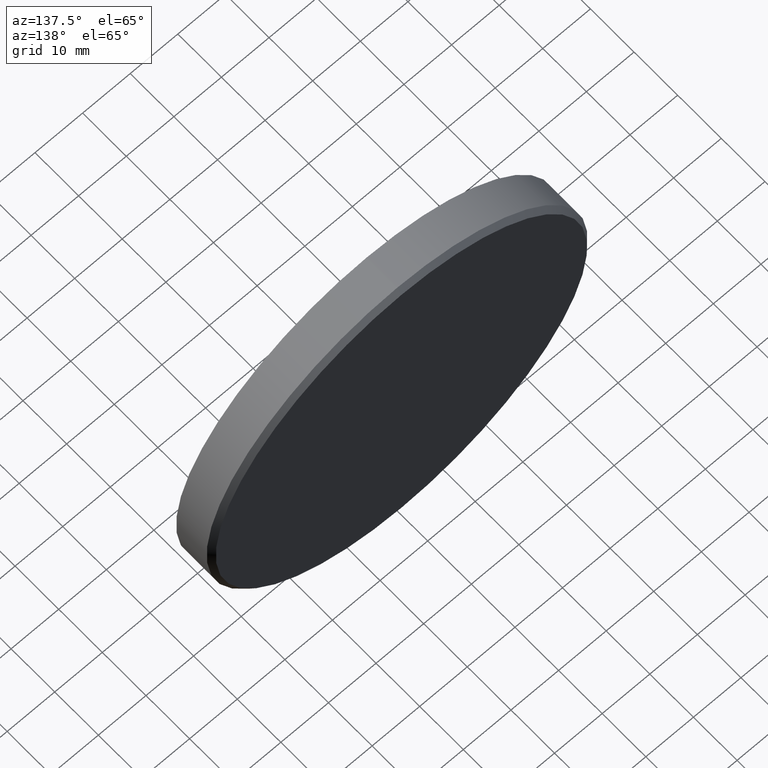
[diagram: clean part render]
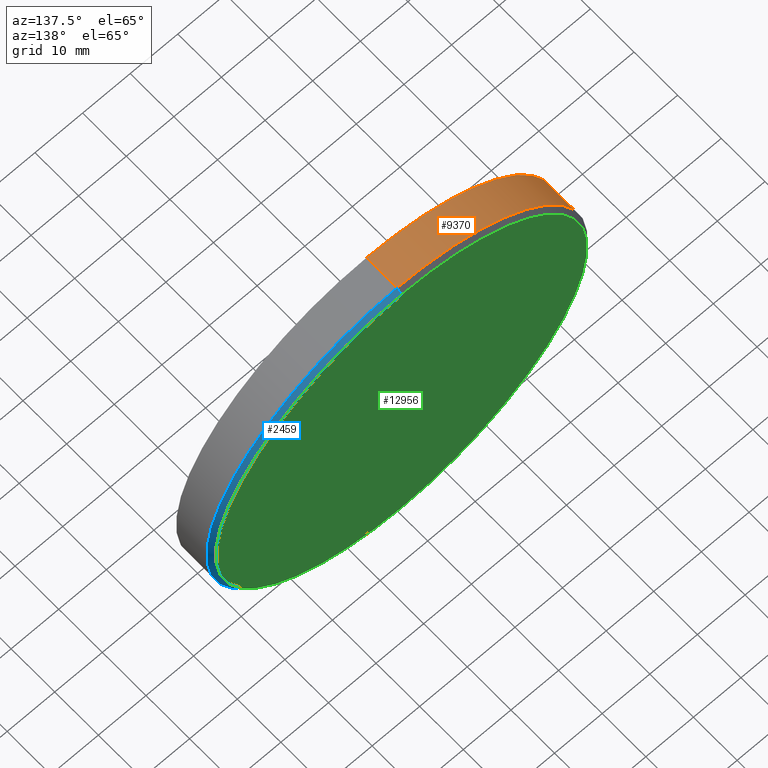
[diagram: same view with three faces highlighted in distinct colors, each labeled with its STEP entity id]
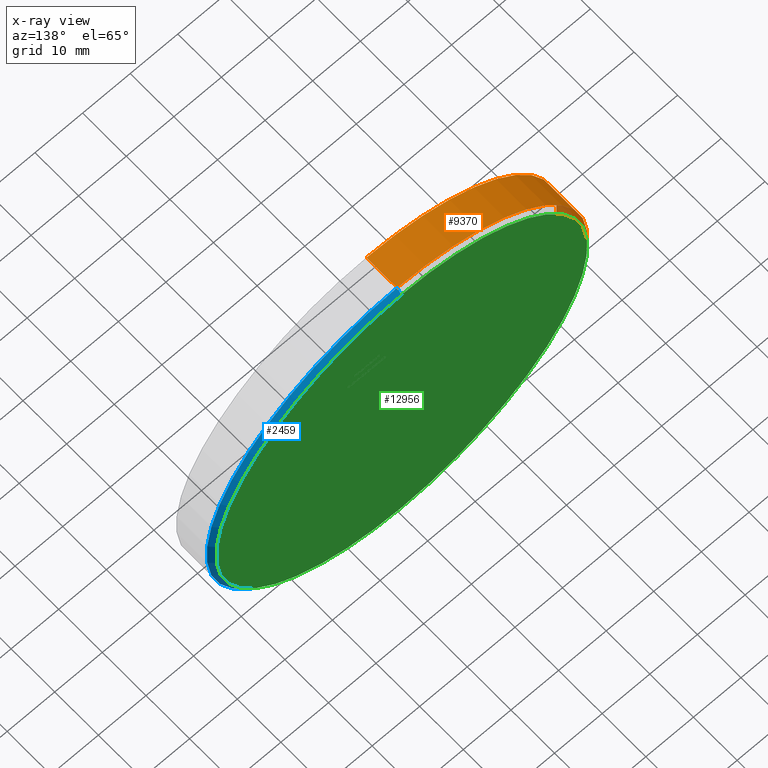
[diagram: x-ray of the same camera — body ghosted, the three highlighted faces saturated]
A machine part, auxiliary view with three faces highlighted in distinct colors.
The next image is the same camera in x-ray (body ghosted, the three faces saturated) — at least one of them is partly hidden behind the body in this view.
Their STEP definitions:

[orange] entity #9370 — the highlighted cylindrical surface (partial cylindrical patch) has radius 40 mm, axis along (-0, -1, -0).
#144 = CARTESIAN_POINT ( 'NONE',  ( 0.000000000000000000, 3.000000000000006217, -40.00000000000000000 ) ) ;
#514 = DIRECTION ( 'NONE',  ( 0.000000000000000000, 0.000000000000000000, 1.000000000000000000 ) ) ;
#927 = VERTEX_POINT ( 'NONE', #144 ) ;
#1267 = EDGE_CURVE ( 'NONE', #7699, #927, #7515, .T. ) ;
#1291 = VERTEX_POINT ( 'NONE', #5901 ) ;
#1484 = CIRCLE ( 'NONE', #15987, 40.00000000000000000 ) ;
#1567 = DIRECTION ( 'NONE',  ( -0.000000000000000000, -1.000000000000000000, -0.000000000000000000 ) ) ;
#1748 = CARTESIAN_POINT ( 'NONE',  ( 4.898587196589413026E-15, 4.000000000000000000, 40.00000000000000000 ) ) ;
#1823 = ORIENTED_EDGE ( 'NONE', *, *, #8007, .T. ) ;
#2233 = VECTOR ( 'NONE', #1567, 1000.000000000000000 ) ;
#2574 = DIRECTION ( 'NONE',  ( 0.000000000000000000, 0.000000000000000000, 1.000000000000000000 ) ) ;
#3330 = FACE_OUTER_BOUND ( 'NONE', #10522, .T. ) ;
#3564 = VECTOR ( 'NONE', #13700, 1000.000000000000000 ) ;
#3938 = ORIENTED_EDGE ( 'NONE', *, *, #1267, .T. ) ;
#5243 = DIRECTION ( 'NONE',  ( 0.000000000000000000, 1.000000000000000000, 0.000000000000000000 ) ) ;
#5835 = CARTESIAN_POINT ( 'NONE',  ( 0.000000000000000000, 3.000000000000006217, 0.000000000000000000 ) ) ;
#5901 = CARTESIAN_POINT ( 'NONE',  ( 0.000000000000000000, -4.000000000000000000, -40.00000000000000000 ) ) ;
#7515 = CIRCLE ( 'NONE', #8580, 40.00000000000000000 ) ;
#7562 = ORIENTED_EDGE ( 'NONE', *, *, #13845, .T. ) ;
#7699 = VERTEX_POINT ( 'NONE', #14073 ) ;
#8007 = EDGE_CURVE ( 'NONE', #927, #1291, #16359, .T. ) ;
#8580 = AXIS2_PLACEMENT_3D ( 'NONE', #5835, #15229, #514 ) ;
#8716 = CARTESIAN_POINT ( 'NONE',  ( 0.000000000000000000, 4.000000000000000000, 0.000000000000000000 ) ) ;
#8767 = CYLINDRICAL_SURFACE ( 'NONE', #11423, 40.00000000000000000 ) ;
#8944 = CARTESIAN_POINT ( 'NONE',  ( 0.000000000000000000, -4.000000000000000000, 0.000000000000000000 ) ) ;
#9370 = ADVANCED_FACE ( 'NONE', ( #3330 ), #8767, .T. ) ;
#9475 = CARTESIAN_POINT ( 'NONE',  ( 0.000000000000000000, 4.000000000000000000, -40.00000000000000000 ) ) ;
#10522 = EDGE_LOOP ( 'NONE', ( #17015, #3938, #1823, #7562 ) ) ;
#11423 = AXIS2_PLACEMENT_3D ( 'NONE', #8716, #15418, #14245 ) ;
#12123 = EDGE_CURVE ( 'NONE', #7699, #15593, #13536, .T. ) ;
#13536 = LINE ( 'NONE', #1748, #2233 ) ;
#13700 = DIRECTION ( 'NONE',  ( -0.000000000000000000, -1.000000000000000000, -0.000000000000000000 ) ) ;
#13845 = EDGE_CURVE ( 'NONE', #1291, #15593, #1484, .T. ) ;
#14073 = CARTESIAN_POINT ( 'NONE',  ( 4.898587196589413026E-15, 3.000000000000006217, 40.00000000000000000 ) ) ;
#14245 = DIRECTION ( 'NONE',  ( 0.000000000000000000, 0.000000000000000000, -1.000000000000000000 ) ) ;
#14975 = CARTESIAN_POINT ( 'NONE',  ( 4.898587196589413026E-15, -4.000000000000000000, 40.00000000000000000 ) ) ;
#15229 = DIRECTION ( 'NONE',  ( 0.000000000000000000, -1.000000000000000000, 0.000000000000000000 ) ) ;
#15418 = DIRECTION ( 'NONE',  ( -0.000000000000000000, -1.000000000000000000, -0.000000000000000000 ) ) ;
#15593 = VERTEX_POINT ( 'NONE', #14975 ) ;
#15987 = AXIS2_PLACEMENT_3D ( 'NONE', #8944, #5243, #2574 ) ;
#16359 = LINE ( 'NONE', #9475, #3564 ) ;
#17015 = ORIENTED_EDGE ( 'NONE', *, *, #12123, .F. ) ;

[blue] entity #2459 — the highlighted conical surface has half-angle 45 deg.
#144 = CARTESIAN_POINT ( 'NONE',  ( 0.000000000000000000, 3.000000000000006217, -40.00000000000000000 ) ) ;
#148 = DIRECTION ( 'NONE',  ( 0.000000000000000000, -1.000000000000000000, 0.000000000000000000 ) ) ;
#180 = DIRECTION ( 'NONE',  ( 0.000000000000000000, 0.000000000000000000, 1.000000000000000000 ) ) ;
#587 = ORIENTED_EDGE ( 'NONE', *, *, #1916, .F. ) ;
#927 = VERTEX_POINT ( 'NONE', #144 ) ;
#1324 = AXIS2_PLACEMENT_3D ( 'NONE', #8188, #13533, #180 ) ;
#1631 = DIRECTION ( 'NONE',  ( 0.000000000000000000, 0.000000000000000000, 1.000000000000000000 ) ) ;
#1916 = EDGE_CURVE ( 'NONE', #9653, #4423, #11182, .T. ) ;
#2130 = VECTOR ( 'NONE', #2848, 999.9999999999998863 ) ;
#2202 = AXIS2_PLACEMENT_3D ( 'NONE', #9428, #8132, #1631 ) ;
#2459 = ADVANCED_FACE ( 'NONE', ( #9514 ), #10357, .T. ) ;
#2848 = DIRECTION ( 'NONE',  ( 0.000000000000000000, -0.7071067811865574537, -0.7071067811865376918 ) ) ;
#4239 = CARTESIAN_POINT ( 'NONE',  ( 0.000000000000000000, 4.000000000000000000, 0.000000000000000000 ) ) ;
#4423 = VERTEX_POINT ( 'NONE', #10004 ) ;
#5883 = ORIENTED_EDGE ( 'NONE', *, *, #9304, .T. ) ;
#6127 = AXIS2_PLACEMENT_3D ( 'NONE', #4239, #148, #6805 ) ;
#6593 = CARTESIAN_POINT ( 'NONE',  ( 4.837354856632047030E-15, 4.000000000000000000, 39.00000000000003553 ) ) ;
#6805 = DIRECTION ( 'NONE',  ( 0.000000000000000000, 0.000000000000000000, -1.000000000000000000 ) ) ;
#7699 = VERTEX_POINT ( 'NONE', #14073 ) ;
#7981 = LINE ( 'NONE', #13156, #2130 ) ;
#8132 = DIRECTION ( 'NONE',  ( 0.000000000000000000, 1.000000000000000000, 0.000000000000000000 ) ) ;
#8188 = CARTESIAN_POINT ( 'NONE',  ( 0.000000000000000000, 3.000000000000006217, 0.000000000000000000 ) ) ;
#8777 = EDGE_CURVE ( 'NONE', #927, #7699, #12354, .T. ) ;
#9104 = ORIENTED_EDGE ( 'NONE', *, *, #12935, .F. ) ;
#9304 = EDGE_CURVE ( 'NONE', #9653, #7699, #11694, .T. ) ;
#9428 = CARTESIAN_POINT ( 'NONE',  ( 0.000000000000000000, 4.000000000000000000, 0.000000000000000000 ) ) ;
#9514 = FACE_OUTER_BOUND ( 'NONE', #13651, .T. ) ;
#9592 = VECTOR ( 'NONE', #16516, 999.9999999999998863 ) ;
#9653 = VERTEX_POINT ( 'NONE', #6593 ) ;
#10004 = CARTESIAN_POINT ( 'NONE',  ( 0.000000000000000000, 4.000000000000000000, -39.00000000000003553 ) ) ;
#10357 = CONICAL_SURFACE ( 'NONE', #6127, 39.00000000000003553, 0.7853981633974344012 ) ;
#11182 = CIRCLE ( 'NONE', #2202, 39.00000000000003553 ) ;
#11694 = LINE ( 'NONE', #13759, #9592 ) ;
#12354 = CIRCLE ( 'NONE', #1324, 40.00000000000000000 ) ;
#12935 = EDGE_CURVE ( 'NONE', #4423, #927, #7981, .T. ) ;
#13156 = CARTESIAN_POINT ( 'NONE',  ( 0.000000000000000000, 4.000000000000000000, -39.00000000000003553 ) ) ;
#13533 = DIRECTION ( 'NONE',  ( 0.000000000000000000, -1.000000000000000000, 0.000000000000000000 ) ) ;
#13651 = EDGE_LOOP ( 'NONE', ( #587, #5883, #16590, #9104 ) ) ;
#13759 = CARTESIAN_POINT ( 'NONE',  ( 4.776122516674681822E-15, 4.000000000000000000, 39.00000000000003553 ) ) ;
#14073 = CARTESIAN_POINT ( 'NONE',  ( 4.898587196589413026E-15, 3.000000000000006217, 40.00000000000000000 ) ) ;
#16516 = DIRECTION ( 'NONE',  ( 8.659560562354813296E-17, -0.7071067811865574537, 0.7071067811865376918 ) ) ;
#16590 = ORIENTED_EDGE ( 'NONE', *, *, #8777, .F. ) ;

[green] entity #12956 — the highlighted planar face has unit normal (0, 1, 0).
#130 = CARTESIAN_POINT ( 'NONE',  ( 0.000000000000000000, 4.000000000000000000, 0.000000000000000000 ) ) ;
#320 = DIRECTION ( 'NONE',  ( 0.000000000000000000, 1.000000000000000000, 0.000000000000000000 ) ) ;
#812 = AXIS2_PLACEMENT_3D ( 'NONE', #15031, #320, #14918 ) ;
#1631 = DIRECTION ( 'NONE',  ( 0.000000000000000000, 0.000000000000000000, 1.000000000000000000 ) ) ;
#1916 = EDGE_CURVE ( 'NONE', #9653, #4423, #11182, .T. ) ;
#2202 = AXIS2_PLACEMENT_3D ( 'NONE', #9428, #8132, #1631 ) ;
#3643 = EDGE_CURVE ( 'NONE', #4423, #9653, #9280, .T. ) ;
#4332 = ORIENTED_EDGE ( 'NONE', *, *, #3643, .T. ) ;
#4423 = VERTEX_POINT ( 'NONE', #10004 ) ;
#5265 = FACE_OUTER_BOUND ( 'NONE', #13862, .T. ) ;
#5622 = PLANE ( 'NONE',  #812 ) ;
#6593 = CARTESIAN_POINT ( 'NONE',  ( 4.837354856632047030E-15, 4.000000000000000000, 39.00000000000003553 ) ) ;
#8132 = DIRECTION ( 'NONE',  ( 0.000000000000000000, 1.000000000000000000, 0.000000000000000000 ) ) ;
#9280 = CIRCLE ( 'NONE', #14231, 39.00000000000003553 ) ;
#9428 = CARTESIAN_POINT ( 'NONE',  ( 0.000000000000000000, 4.000000000000000000, 0.000000000000000000 ) ) ;
#9574 = ORIENTED_EDGE ( 'NONE', *, *, #1916, .T. ) ;
#9653 = VERTEX_POINT ( 'NONE', #6593 ) ;
#9946 = DIRECTION ( 'NONE',  ( 0.000000000000000000, 1.000000000000000000, 0.000000000000000000 ) ) ;
#10004 = CARTESIAN_POINT ( 'NONE',  ( 0.000000000000000000, 4.000000000000000000, -39.00000000000003553 ) ) ;
#11182 = CIRCLE ( 'NONE', #2202, 39.00000000000003553 ) ;
#12956 = ADVANCED_FACE ( 'NONE', ( #5265 ), #5622, .T. ) ;
#13862 = EDGE_LOOP ( 'NONE', ( #4332, #9574 ) ) ;
#14231 = AXIS2_PLACEMENT_3D ( 'NONE', #130, #9946, #16712 ) ;
#14918 = DIRECTION ( 'NONE',  ( 0.000000000000000000, -0.000000000000000000, 1.000000000000000000 ) ) ;
#15031 = CARTESIAN_POINT ( 'NONE',  ( 0.000000000000000000, 4.000000000000000000, 0.000000000000000000 ) ) ;
#16712 = DIRECTION ( 'NONE',  ( 0.000000000000000000, 0.000000000000000000, 1.000000000000000000 ) ) ;